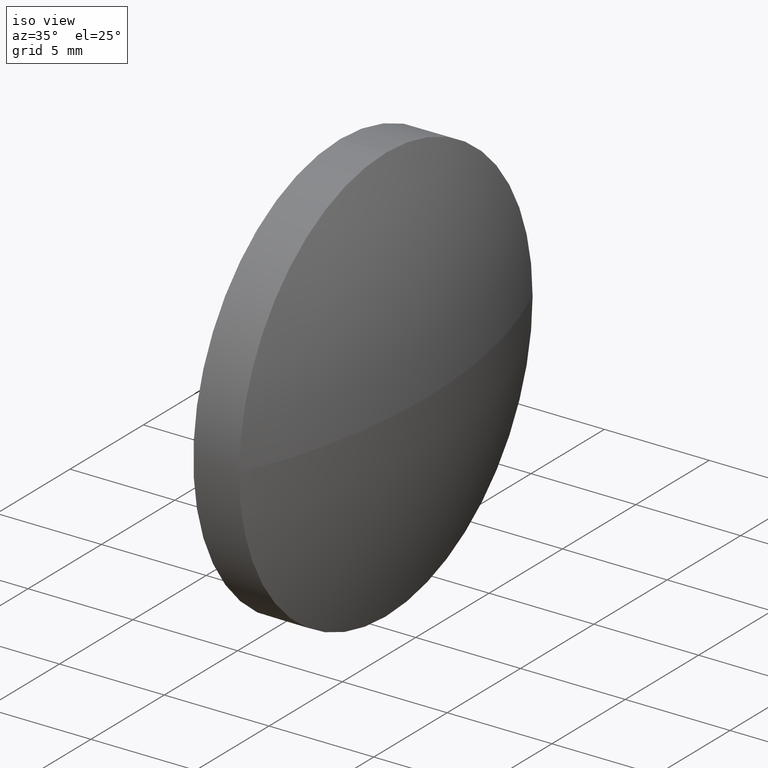
[diagram: clean part render]
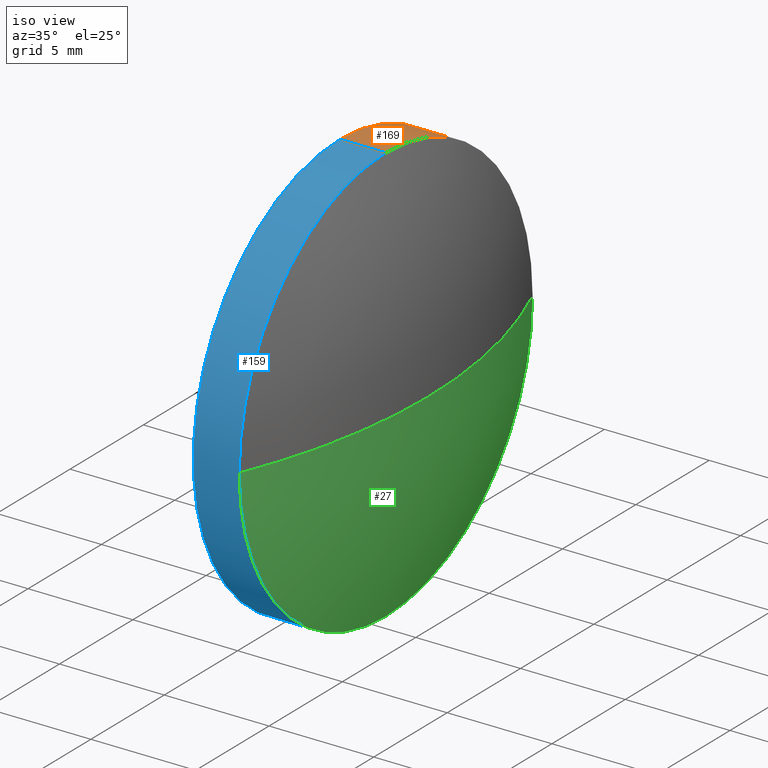
[diagram: same view with three faces highlighted in distinct colors, each labeled with its STEP entity id]
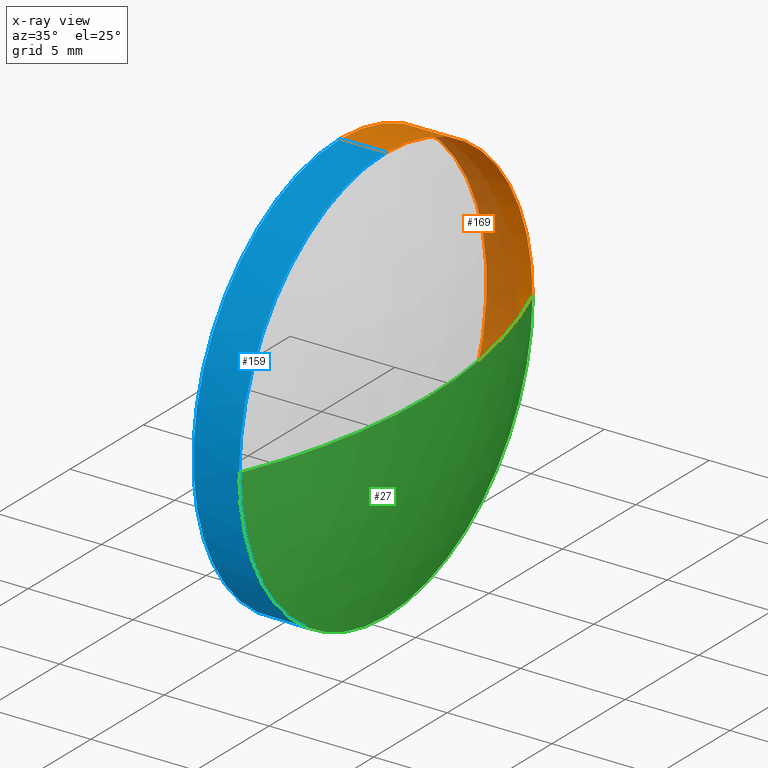
[diagram: x-ray of the same camera — body ghosted, the three highlighted faces saturated]
A machine part, iso view with three faces highlighted in distinct colors.
The next image is the same camera in x-ray (body ghosted, the three faces saturated) — at least one of them is partly hidden behind the body in this view.
Their STEP definitions:

[orange] entity #169 — the highlighted cylindrical surface (partial cylindrical patch) has radius 10 mm, axis along (-1, -0, -0).
#3 = VERTEX_POINT ( 'NONE', #35 ) ;
#4 = AXIS2_PLACEMENT_3D ( 'NONE', #132, #127, #62 ) ;
#6 = CIRCLE ( 'NONE', #86, 9.999999999999980500 ) ;
#13 = CIRCLE ( 'NONE', #4, 9.999999999999980500 ) ;
#16 = CYLINDRICAL_SURFACE ( 'NONE', #23, 9.999999999999980500 ) ;
#18 = VERTEX_POINT ( 'NONE', #162 ) ;
#20 = DIRECTION ( 'NONE',  ( -1.000000000000000000, -0.0000000000000000000, -0.0000000000000000000 ) ) ;
#22 = CARTESIAN_POINT ( 'NONE',  ( 548.8630533554371600, 125.1720671761335200, -9.999999999999980500 ) ) ;
#23 = AXIS2_PLACEMENT_3D ( 'NONE', #67, #68, #36 ) ;
#32 = CARTESIAN_POINT ( 'NONE',  ( 548.8630533554371600, 125.1720671761335200, 9.999999999999980500 ) ) ;
#35 = CARTESIAN_POINT ( 'NONE',  ( 553.4565742364943600, 125.1720671761335200, -9.999999999999980500 ) ) ;
#36 = DIRECTION ( 'NONE',  ( 0.0000000000000000000, 0.0000000000000000000, 1.000000000000000000 ) ) ;
#38 = CARTESIAN_POINT ( 'NONE',  ( 553.4565742364943600, 135.1720671761334500, 0.0000000000000000000 ) ) ;
#46 = EDGE_LOOP ( 'NONE', ( #82, #182, #120, #153, #99 ) ) ;
#59 = EDGE_CURVE ( 'NONE', #105, #18, #94, .T. ) ;
#61 = FACE_OUTER_BOUND ( 'NONE', #46, .T. ) ;
#62 = DIRECTION ( 'NONE',  ( 0.0000000000000000000, 0.0000000000000000000, 1.000000000000000000 ) ) ;
#64 = DIRECTION ( 'NONE',  ( -1.000000000000000000, -0.0000000000000000000, -0.0000000000000000000 ) ) ;
#65 = DIRECTION ( 'NONE',  ( -1.000000000000000000, -0.0000000000000000000, -0.0000000000000000000 ) ) ;
#66 = EDGE_CURVE ( 'NONE', #183, #3, #13, .T. ) ;
#67 = CARTESIAN_POINT ( 'NONE',  ( 548.8630533554371600, 125.1720671761335200, 0.0000000000000000000 ) ) ;
#68 = DIRECTION ( 'NONE',  ( -1.000000000000000000, -0.0000000000000000000, -0.0000000000000000000 ) ) ;
#69 = CARTESIAN_POINT ( 'NONE',  ( 551.2665742364943100, 125.1720671761335200, -9.999999999999980500 ) ) ;
#82 = ORIENTED_EDGE ( 'NONE', *, *, #66, .T. ) ;
#85 = EDGE_CURVE ( 'NONE', #18, #138, #6, .T. ) ;
#86 = AXIS2_PLACEMENT_3D ( 'NONE', #136, #65, #122 ) ;
#94 = LINE ( 'NONE', #32, #134 ) ;
#95 = AXIS2_PLACEMENT_3D ( 'NONE', #181, #107, #184 ) ;
#99 = ORIENTED_EDGE ( 'NONE', *, *, #103, .T. ) ;
#103 = EDGE_CURVE ( 'NONE', #105, #183, #168, .T. ) ;
#105 = VERTEX_POINT ( 'NONE', #167 ) ;
#107 = DIRECTION ( 'NONE',  ( -1.000000000000000000, -0.0000000000000000000, -0.0000000000000000000 ) ) ;
#110 = VECTOR ( 'NONE', #20, 1000.000000000000000 ) ;
#115 = EDGE_CURVE ( 'NONE', #3, #138, #147, .T. ) ;
#120 = ORIENTED_EDGE ( 'NONE', *, *, #85, .F. ) ;
#122 = DIRECTION ( 'NONE',  ( 0.0000000000000000000, 0.0000000000000000000, 1.000000000000000000 ) ) ;
#127 = DIRECTION ( 'NONE',  ( -1.000000000000000000, -0.0000000000000000000, -0.0000000000000000000 ) ) ;
#132 = CARTESIAN_POINT ( 'NONE',  ( 553.4565742364943600, 125.1720671761335200, 0.0000000000000000000 ) ) ;
#134 = VECTOR ( 'NONE', #64, 1000.000000000000000 ) ;
#136 = CARTESIAN_POINT ( 'NONE',  ( 551.2665742364943100, 125.1720671761335200, 0.0000000000000000000 ) ) ;
#138 = VERTEX_POINT ( 'NONE', #69 ) ;
#147 = LINE ( 'NONE', #22, #110 ) ;
#153 = ORIENTED_EDGE ( 'NONE', *, *, #59, .F. ) ;
#162 = CARTESIAN_POINT ( 'NONE',  ( 551.2665742364943100, 125.1720671761335200, 9.999999999999980500 ) ) ;
#167 = CARTESIAN_POINT ( 'NONE',  ( 553.4565742364943600, 125.1720671761335200, 9.999999999999980500 ) ) ;
#168 = CIRCLE ( 'NONE', #95, 9.999999999999980500 ) ;
#169 = ADVANCED_FACE ( 'NONE', ( #61 ), #16, .T. ) ;
#181 = CARTESIAN_POINT ( 'NONE',  ( 553.4565742364943600, 125.1720671761335200, 0.0000000000000000000 ) ) ;
#182 = ORIENTED_EDGE ( 'NONE', *, *, #115, .T. ) ;
#183 = VERTEX_POINT ( 'NONE', #38 ) ;
#184 = DIRECTION ( 'NONE',  ( 0.0000000000000000000, 0.0000000000000000000, 1.000000000000000000 ) ) ;

[blue] entity #159 — the highlighted cylindrical surface (partial cylindrical patch) has radius 10 mm, axis along (-1, -0, -0).
#1 = ORIENTED_EDGE ( 'NONE', *, *, #74, .T. ) ;
#3 = VERTEX_POINT ( 'NONE', #35 ) ;
#5 = EDGE_CURVE ( 'NONE', #3, #170, #156, .T. ) ;
#9 = ORIENTED_EDGE ( 'NONE', *, *, #59, .T. ) ;
#11 = ORIENTED_EDGE ( 'NONE', *, *, #72, .F. ) ;
#14 = AXIS2_PLACEMENT_3D ( 'NONE', #33, #163, #90 ) ;
#17 = CARTESIAN_POINT ( 'NONE',  ( 551.2665742364943100, 125.1720671761335200, 0.0000000000000000000 ) ) ;
#18 = VERTEX_POINT ( 'NONE', #162 ) ;
#20 = DIRECTION ( 'NONE',  ( -1.000000000000000000, -0.0000000000000000000, -0.0000000000000000000 ) ) ;
#22 = CARTESIAN_POINT ( 'NONE',  ( 548.8630533554371600, 125.1720671761335200, -9.999999999999980500 ) ) ;
#32 = CARTESIAN_POINT ( 'NONE',  ( 548.8630533554371600, 125.1720671761335200, 9.999999999999980500 ) ) ;
#33 = CARTESIAN_POINT ( 'NONE',  ( 553.4565742364943600, 125.1720671761335200, 0.0000000000000000000 ) ) ;
#35 = CARTESIAN_POINT ( 'NONE',  ( 553.4565742364943600, 125.1720671761335200, -9.999999999999980500 ) ) ;
#42 = FACE_OUTER_BOUND ( 'NONE', #75, .T. ) ;
#50 = DIRECTION ( 'NONE',  ( -1.000000000000000000, -0.0000000000000000000, -0.0000000000000000000 ) ) ;
#59 = EDGE_CURVE ( 'NONE', #105, #18, #94, .T. ) ;
#63 = CIRCLE ( 'NONE', #118, 9.999999999999980500 ) ;
#64 = DIRECTION ( 'NONE',  ( -1.000000000000000000, -0.0000000000000000000, -0.0000000000000000000 ) ) ;
#69 = CARTESIAN_POINT ( 'NONE',  ( 551.2665742364943100, 125.1720671761335200, -9.999999999999980500 ) ) ;
#70 = ORIENTED_EDGE ( 'NONE', *, *, #115, .F. ) ;
#72 = EDGE_CURVE ( 'NONE', #138, #18, #63, .T. ) ;
#74 = EDGE_CURVE ( 'NONE', #170, #105, #80, .T. ) ;
#75 = EDGE_LOOP ( 'NONE', ( #70, #111, #1, #9, #11 ) ) ;
#80 = CIRCLE ( 'NONE', #14, 9.999999999999980500 ) ;
#88 = AXIS2_PLACEMENT_3D ( 'NONE', #108, #104, #116 ) ;
#90 = DIRECTION ( 'NONE',  ( 0.0000000000000000000, 0.0000000000000000000, 1.000000000000000000 ) ) ;
#94 = LINE ( 'NONE', #32, #134 ) ;
#104 = DIRECTION ( 'NONE',  ( -1.000000000000000000, -0.0000000000000000000, -0.0000000000000000000 ) ) ;
#105 = VERTEX_POINT ( 'NONE', #167 ) ;
#108 = CARTESIAN_POINT ( 'NONE',  ( 548.8630533554371600, 125.1720671761335200, 0.0000000000000000000 ) ) ;
#110 = VECTOR ( 'NONE', #20, 1000.000000000000000 ) ;
#111 = ORIENTED_EDGE ( 'NONE', *, *, #5, .T. ) ;
#115 = EDGE_CURVE ( 'NONE', #3, #138, #147, .T. ) ;
#116 = DIRECTION ( 'NONE',  ( 0.0000000000000000000, 0.0000000000000000000, 1.000000000000000000 ) ) ;
#118 = AXIS2_PLACEMENT_3D ( 'NONE', #17, #160, #175 ) ;
#119 = CARTESIAN_POINT ( 'NONE',  ( 553.4565742364943600, 115.1720671761335000, -1.224646799147346600E-015 ) ) ;
#124 = CYLINDRICAL_SURFACE ( 'NONE', #88, 9.999999999999980500 ) ;
#134 = VECTOR ( 'NONE', #64, 1000.000000000000000 ) ;
#138 = VERTEX_POINT ( 'NONE', #69 ) ;
#146 = CARTESIAN_POINT ( 'NONE',  ( 553.4565742364943600, 125.1720671761335200, 0.0000000000000000000 ) ) ;
#147 = LINE ( 'NONE', #22, #110 ) ;
#156 = CIRCLE ( 'NONE', #180, 9.999999999999980500 ) ;
#159 = ADVANCED_FACE ( 'NONE', ( #42 ), #124, .T. ) ;
#160 = DIRECTION ( 'NONE',  ( -1.000000000000000000, -0.0000000000000000000, -0.0000000000000000000 ) ) ;
#161 = DIRECTION ( 'NONE',  ( 0.0000000000000000000, 0.0000000000000000000, 1.000000000000000000 ) ) ;
#162 = CARTESIAN_POINT ( 'NONE',  ( 551.2665742364943100, 125.1720671761335200, 9.999999999999980500 ) ) ;
#163 = DIRECTION ( 'NONE',  ( -1.000000000000000000, -0.0000000000000000000, -0.0000000000000000000 ) ) ;
#167 = CARTESIAN_POINT ( 'NONE',  ( 553.4565742364943600, 125.1720671761335200, 9.999999999999980500 ) ) ;
#170 = VERTEX_POINT ( 'NONE', #119 ) ;
#175 = DIRECTION ( 'NONE',  ( 0.0000000000000000000, 0.0000000000000000000, 1.000000000000000000 ) ) ;
#180 = AXIS2_PLACEMENT_3D ( 'NONE', #146, #50, #161 ) ;

[green] entity #27 — the highlighted spherical surface has radius 25.8806 mm.
#3 = VERTEX_POINT ( 'NONE', #35 ) ;
#4 = AXIS2_PLACEMENT_3D ( 'NONE', #132, #127, #62 ) ;
#5 = EDGE_CURVE ( 'NONE', #3, #170, #156, .T. ) ;
#8 = DIRECTION ( 'NONE',  ( -0.0000000000000000000, 0.0000000000000000000, -1.000000000000000000 ) ) ;
#13 = CIRCLE ( 'NONE', #4, 9.999999999999980500 ) ;
#25 = DIRECTION ( 'NONE',  ( 0.0000000000000000000, 1.000000000000000000, 1.224646799147353200E-016 ) ) ;
#27 = ADVANCED_FACE ( 'NONE', ( #97 ), #143, .T. ) ;
#31 = AXIS2_PLACEMENT_3D ( 'NONE', #93, #149, #54 ) ;
#35 = CARTESIAN_POINT ( 'NONE',  ( 553.4565742364943600, 125.1720671761335200, -9.999999999999980500 ) ) ;
#38 = CARTESIAN_POINT ( 'NONE',  ( 553.4565742364943600, 135.1720671761334500, 0.0000000000000000000 ) ) ;
#41 = CARTESIAN_POINT ( 'NONE',  ( 529.5859523459470200, 125.1720671761334400, 0.0000000000000000000 ) ) ;
#50 = DIRECTION ( 'NONE',  ( -1.000000000000000000, -0.0000000000000000000, -0.0000000000000000000 ) ) ;
#52 = DIRECTION ( 'NONE',  ( 0.0000000000000000000, 1.000000000000000000, 0.0000000000000000000 ) ) ;
#54 = DIRECTION ( 'NONE',  ( 1.000000000000000000, 0.0000000000000000000, 0.0000000000000000000 ) ) ;
#60 = CIRCLE ( 'NONE', #31, 25.88062189054729600 ) ;
#62 = DIRECTION ( 'NONE',  ( 0.0000000000000000000, 0.0000000000000000000, 1.000000000000000000 ) ) ;
#66 = EDGE_CURVE ( 'NONE', #183, #3, #13, .T. ) ;
#71 = CIRCLE ( 'NONE', #140, 25.88062189054732400 ) ;
#78 = CARTESIAN_POINT ( 'NONE',  ( 555.4665742364943500, 125.1720671761334400, 0.0000000000000000000 ) ) ;
#89 = EDGE_CURVE ( 'NONE', #130, #170, #71, .T. ) ;
#93 = CARTESIAN_POINT ( 'NONE',  ( 529.5859523459470200, 125.1720671761334400, 0.0000000000000000000 ) ) ;
#97 = FACE_OUTER_BOUND ( 'NONE', #139, .T. ) ;
#100 = AXIS2_PLACEMENT_3D ( 'NONE', #131, #8, #52 ) ;
#119 = CARTESIAN_POINT ( 'NONE',  ( 553.4565742364943600, 115.1720671761335000, -1.224646799147346600E-015 ) ) ;
#127 = DIRECTION ( 'NONE',  ( -1.000000000000000000, -0.0000000000000000000, -0.0000000000000000000 ) ) ;
#130 = VERTEX_POINT ( 'NONE', #78 ) ;
#131 = CARTESIAN_POINT ( 'NONE',  ( 529.5859523459470200, 125.1720671761334400, 0.0000000000000000000 ) ) ;
#132 = CARTESIAN_POINT ( 'NONE',  ( 553.4565742364943600, 125.1720671761335200, 0.0000000000000000000 ) ) ;
#137 = DIRECTION ( 'NONE',  ( 0.0000000000000000000, 1.224646799147353200E-016, -1.000000000000000000 ) ) ;
#139 = EDGE_LOOP ( 'NONE', ( #172, #141, #142, #157 ) ) ;
#140 = AXIS2_PLACEMENT_3D ( 'NONE', #41, #137, #25 ) ;
#141 = ORIENTED_EDGE ( 'NONE', *, *, #89, .T. ) ;
#142 = ORIENTED_EDGE ( 'NONE', *, *, #5, .F. ) ;
#143 = SPHERICAL_SURFACE ( 'NONE', #100, 25.88062189054732800 ) ;
#146 = CARTESIAN_POINT ( 'NONE',  ( 553.4565742364943600, 125.1720671761335200, 0.0000000000000000000 ) ) ;
#149 = DIRECTION ( 'NONE',  ( -0.0000000000000000000, 0.0000000000000000000, 1.000000000000000000 ) ) ;
#156 = CIRCLE ( 'NONE', #180, 9.999999999999980500 ) ;
#157 = ORIENTED_EDGE ( 'NONE', *, *, #66, .F. ) ;
#158 = EDGE_CURVE ( 'NONE', #130, #183, #60, .T. ) ;
#161 = DIRECTION ( 'NONE',  ( 0.0000000000000000000, 0.0000000000000000000, 1.000000000000000000 ) ) ;
#170 = VERTEX_POINT ( 'NONE', #119 ) ;
#172 = ORIENTED_EDGE ( 'NONE', *, *, #158, .F. ) ;
#180 = AXIS2_PLACEMENT_3D ( 'NONE', #146, #50, #161 ) ;
#183 = VERTEX_POINT ( 'NONE', #38 ) ;